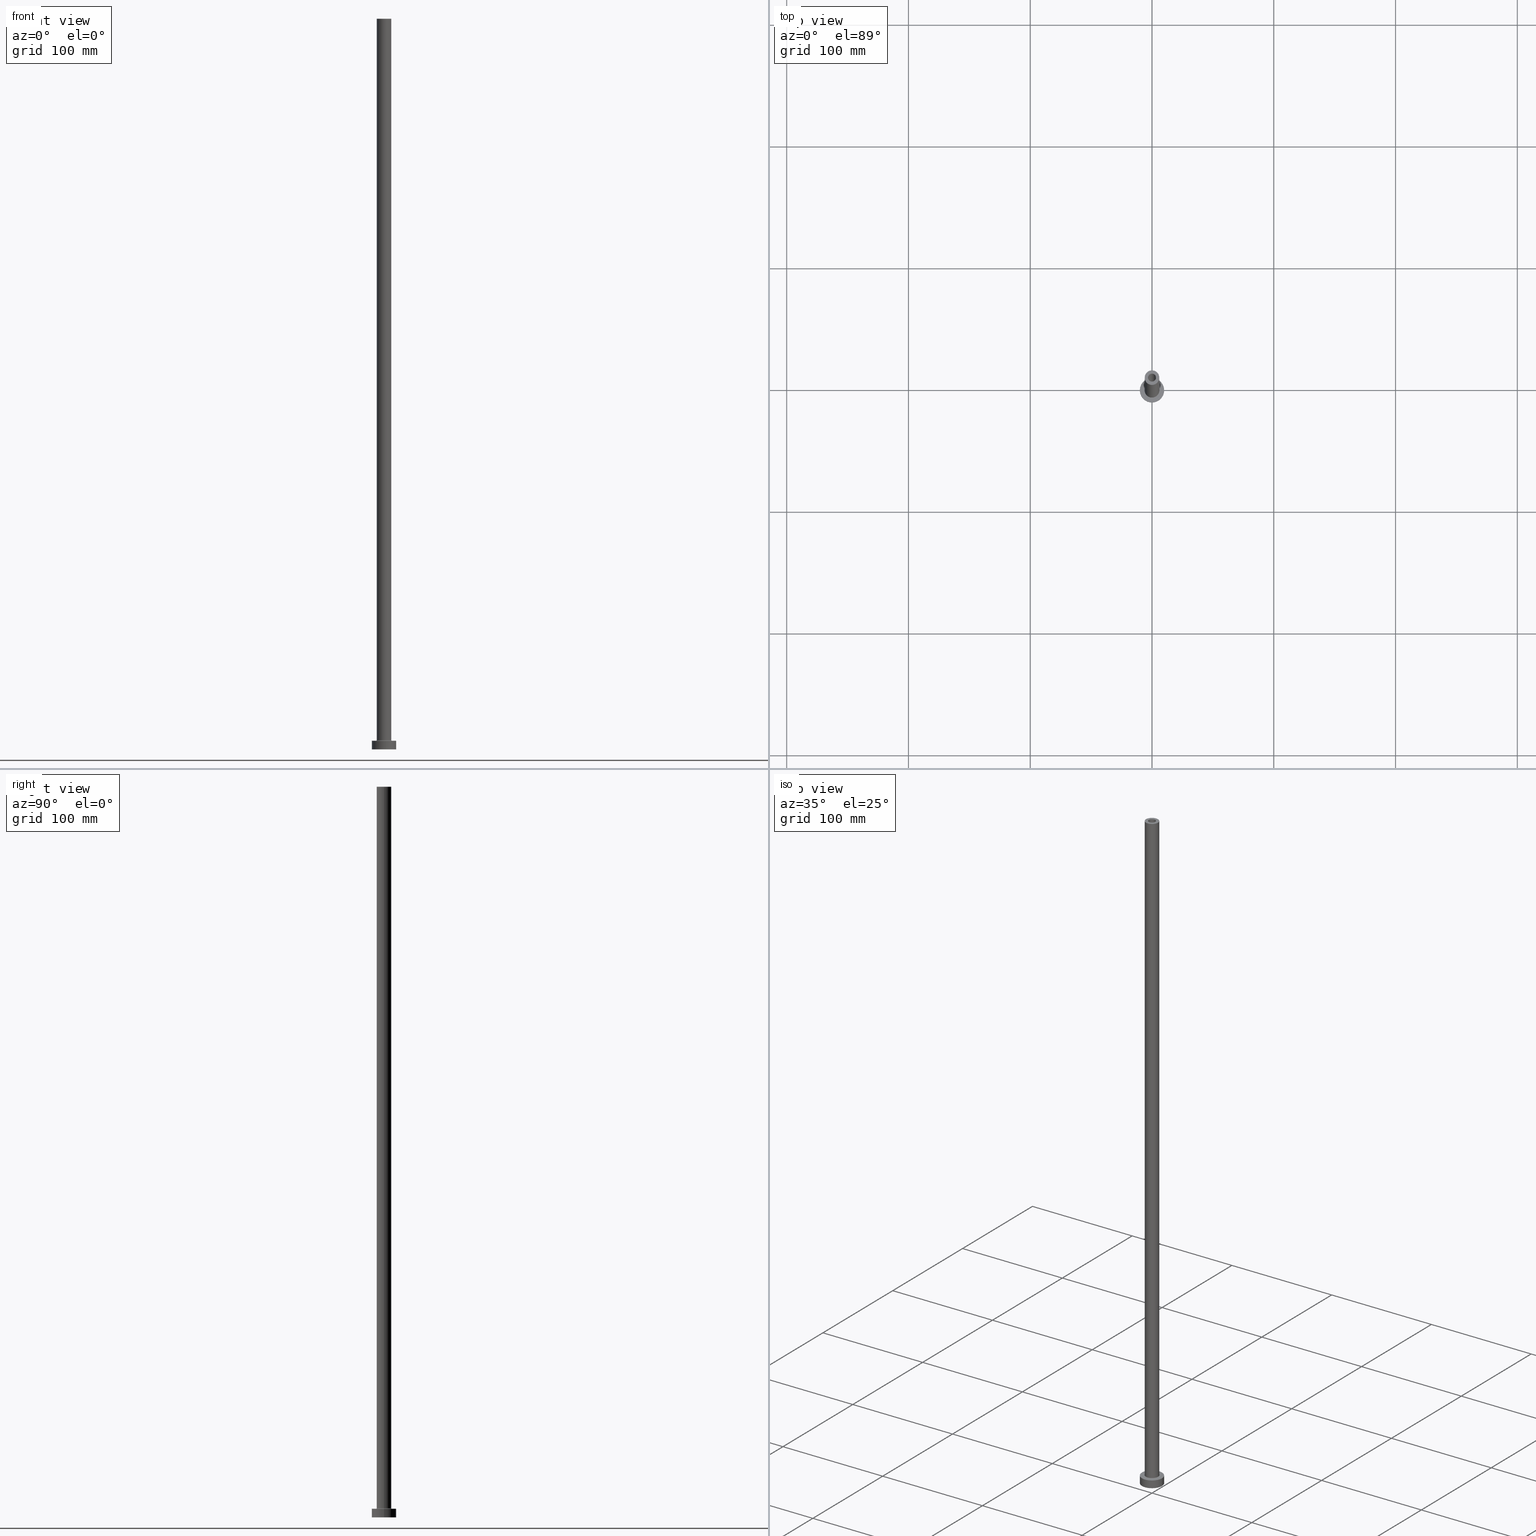
[diagram: canonical four-view strip — front | top / right | iso, engineering-drawing reading convention]
A machine part, canonical four-view strip (front | top / right | iso — engineering-drawing reading convention). The complete STEP part file that produces these views, byte-faithful:
ISO-10303-21;
HEADER;
FILE_DESCRIPTION (( 'STEP AP203' ),
    '1' );
FILE_NAME ('4e59.STEP',
    '2023-02-13T13:29:36',
    ( '' ),
    ( '' ),
    'SwSTEP 2.0',
    'SolidWorks 2019',
    '' );
FILE_SCHEMA (( 'CONFIG_CONTROL_DESIGN' ));
ENDSEC;

DATA;
#1 = DIRECTION ( 'NONE',  ( -0.000000000000000000, -0.000000000000000000, -1.000000000000000000 ) ) ;
#2 = CARTESIAN_POINT ( 'NONE',  ( 0.000000000000000000, 0.000000000000000000, 0.000000000000000000 ) ) ;
#3 = VERTEX_POINT ( 'NONE', #307 ) ;
#4 = COORDINATED_UNIVERSAL_TIME_OFFSET ( 1, 0, .AHEAD. ) ;
#5 = DIRECTION ( 'NONE',  ( -1.000000000000000000, 0.000000000000000000, 0.000000000000000000 ) ) ;
#6 = CARTESIAN_POINT ( 'NONE',  ( 3.399999999999999911, 4.163799117101000559E-16, 564.6166522241369421 ) ) ;
#7 = CARTESIAN_POINT ( 'NONE',  ( 0.000000000000000000, 0.000000000000000000, 7.000000000000000000 ) ) ;
#8 = APPROVAL_PERSON_ORGANIZATION ( #458, #315, #319 ) ;
#9 = LINE ( 'NONE', #259, #132 ) ;
#10 = FACE_OUTER_BOUND ( 'NONE', #16, .T. ) ;
#11 = ADVANCED_FACE ( 'NONE', ( #127, #196 ), #451, .T. ) ;
#12 = CARTESIAN_POINT ( 'NONE',  ( 0.000000000000000000, 0.000000000000000000, 600.0000000000000000 ) ) ;
#13 = CYLINDRICAL_SURFACE ( 'NONE', #202, 3.250000000000000444 ) ;
#14 = VERTEX_POINT ( 'NONE', #62 ) ;
#15 = FACE_OUTER_BOUND ( 'NONE', #286, .T. ) ;
#16 = EDGE_LOOP ( 'NONE', ( #242, #39, #455, #109 ) ) ;
#17 = LOCAL_TIME ( 14, 29, 36.00000000000000000, #250 ) ;
#18 = CARTESIAN_POINT ( 'NONE',  ( 0.000000000000000000, 0.000000000000000000, 564.6166522241369421 ) ) ;
#19 = APPROVAL_DATE_TIME ( #26, #104 ) ;
#20 = ORIENTED_EDGE ( 'NONE', *, *, #422, .F. ) ;
#21 = AXIS2_PLACEMENT_3D ( 'NONE', #63, #273, #411 ) ;
#22 = ORIENTED_EDGE ( 'NONE', *, *, #100, .F. ) ;
#23 = PERSON_AND_ORGANIZATION_ROLE ( 'creator' ) ;
#24 = EDGE_LOOP ( 'NONE', ( #356, #60 ) ) ;
#25 = CARTESIAN_POINT ( 'NONE',  ( -3.399999999999999911, 0.000000000000000000, 554.9999999999998863 ) ) ;
#26 = DATE_AND_TIME ( #90, #234 ) ;
#27 = EDGE_CURVE ( 'NONE', #3, #415, #381, .T. ) ;
#28 = DIRECTION ( 'NONE',  ( 1.000000000000000000, 0.000000000000000000, 0.000000000000000000 ) ) ;
#29 = ORIENTED_EDGE ( 'NONE', *, *, #312, .T. ) ;
#30 = CIRCLE ( 'NONE', #282, 10.00000000000000000 ) ;
#31 = LOCAL_TIME ( 14, 29, 36.00000000000000000, #416 ) ;
#32 = AXIS2_PLACEMENT_3D ( 'NONE', #344, #162, #454 ) ;
#33 = EDGE_CURVE ( 'NONE', #330, #160, #384, .T. ) ;
#34 = CC_DESIGN_PERSON_AND_ORGANIZATION_ASSIGNMENT ( #394, #252, ( #277 ) ) ;
#35 = CARTESIAN_POINT ( 'NONE',  ( 0.000000000000000000, 0.000000000000000000, 7.499999999999951150 ) ) ;
#36 = PERSON_AND_ORGANIZATION ( #383, #290 ) ;
#37 = CIRCLE ( 'NONE', #190, 3.250000000000000444 ) ;
#38 = FACE_OUTER_BOUND ( 'NONE', #271, .T. ) ;
#39 = ORIENTED_EDGE ( 'NONE', *, *, #280, .T. ) ;
#40 = CARTESIAN_POINT ( 'NONE',  ( 0.000000000000000000, 0.000000000000000000, 600.0000000000000000 ) ) ;
#41 = VERTEX_POINT ( 'NONE', #25 ) ;
#42 = CARTESIAN_POINT ( 'NONE',  ( 0.000000000000000000, 0.000000000000000000, 0.000000000000000000 ) ) ;
#43 = DIRECTION ( 'NONE',  ( -1.000000000000000000, 0.000000000000000000, 0.000000000000000000 ) ) ;
#44 = DIRECTION ( 'NONE',  ( 0.000000000000000000, 0.000000000000000000, -1.000000000000000000 ) ) ;
#45 = APPROVAL_PERSON_ORGANIZATION ( #36, #239, #317 ) ;
#46 = CARTESIAN_POINT ( 'NONE',  ( 6.500000000000000888, 0.000000000000000000, 6.999999999999975131 ) ) ;
#47 = ADVANCED_FACE ( 'NONE', ( #406 ), #198, .F. ) ;
#48 = DIRECTION ( 'NONE',  ( -0.000000000000000000, -0.000000000000000000, -1.000000000000000000 ) ) ;
#49 = CARTESIAN_POINT ( 'NONE',  ( 0.000000000000000000, 0.000000000000000000, 0.000000000000000000 ) ) ;
#50 = EDGE_LOOP ( 'NONE', ( #304, #275, #305, #447 ) ) ;
#51 = LINE ( 'NONE', #83, #452 ) ;
#52 = EDGE_CURVE ( 'NONE', #92, #338, #114, .T. ) ;
#53 = FACE_OUTER_BOUND ( 'NONE', #233, .T. ) ;
#54 = PERSON_AND_ORGANIZATION_ROLE ( 'design_supplier' ) ;
#55 = EDGE_LOOP ( 'NONE', ( #184, #64 ) ) ;
#56 = ORIENTED_EDGE ( 'NONE', *, *, #52, .F. ) ;
#57 = AXIS2_PLACEMENT_3D ( 'NONE', #428, #1, #283 ) ;
#58 = DIRECTION ( 'NONE',  ( 0.000000000000000000, 0.000000000000000000, -1.000000000000000000 ) ) ;
#59 = PERSON_AND_ORGANIZATION ( #383, #290 ) ;
#60 = ORIENTED_EDGE ( 'NONE', *, *, #27, .T. ) ;
#61 = ORIENTED_EDGE ( 'NONE', *, *, #200, .F. ) ;
#62 = CARTESIAN_POINT ( 'NONE',  ( -6.000000000000000888, 0.000000000000000000, 600.0000000000000000 ) ) ;
#63 = CARTESIAN_POINT ( 'NONE',  ( 0.000000000000000000, 0.000000000000000000, 7.000000000000000000 ) ) ;
#64 = ORIENTED_EDGE ( 'NONE', *, *, #453, .F. ) ;
#65 = DATE_TIME_ROLE ( 'classification_date' ) ;
#66 = ORIENTED_EDGE ( 'NONE', *, *, #380, .F. ) ;
#67 = AXIS2_PLACEMENT_3D ( 'NONE', #445, #400, #365 ) ;
#68 = EDGE_CURVE ( 'NONE', #160, #330, #423, .T. ) ;
#69 = DIRECTION ( 'NONE',  ( 1.000000000000000000, 0.000000000000000000, 0.000000000000000000 ) ) ;
#70 = CARTESIAN_POINT ( 'NONE',  ( 0.000000000000000000, 0.000000000000000000, 564.6166522241369421 ) ) ;
#71 = DIRECTION ( 'NONE',  ( -0.000000000000000000, -0.000000000000000000, -1.000000000000000000 ) ) ;
#72 = ORIENTED_EDGE ( 'NONE', *, *, #439, .T. ) ;
#73 = DIRECTION ( 'NONE',  ( 0.000000000000000000, 0.000000000000000000, 1.000000000000000000 ) ) ;
#74 = AXIS2_PLACEMENT_3D ( 'NONE', #397, #48, #331 ) ;
#75 = CARTESIAN_POINT ( 'NONE',  ( 10.00000000000000000, 1.224646799147353256E-15, 7.000000000000000000 ) ) ;
#76 = AXIS2_PLACEMENT_3D ( 'NONE', #148, #260, #393 ) ;
#77 = LINE ( 'NONE', #6, #371 ) ;
#78 = CYLINDRICAL_SURFACE ( 'NONE', #203, 6.000000000000000888 ) ;
#79 = CARTESIAN_POINT ( 'NONE',  ( -3.250000000000000444, 0.000000000000000000, 600.0000000000000000 ) ) ;
#80 = DIRECTION ( 'NONE',  ( -0.000000000000000000, -0.000000000000000000, -1.000000000000000000 ) ) ;
#81 = DIRECTION ( 'NONE',  ( -0.000000000000000000, -0.000000000000000000, -1.000000000000000000 ) ) ;
#82 = AXIS2_PLACEMENT_3D ( 'NONE', #434, #80, #255 ) ;
#83 = CARTESIAN_POINT ( 'NONE',  ( -6.000000000000000888, 0.000000000000000000, 600.0000000000000000 ) ) ;
#84 = CC_DESIGN_PERSON_AND_ORGANIZATION_ASSIGNMENT ( #59, #188, ( #222 ) ) ;
#85 = EDGE_CURVE ( 'NONE', #370, #338, #9, .T. ) ;
#86 = FACE_OUTER_BOUND ( 'NONE', #302, .T. ) ;
#87 = CARTESIAN_POINT ( 'NONE',  ( 0.000000000000000000, 0.000000000000000000, 600.0000000000000000 ) ) ;
#88 = VERTEX_POINT ( 'NONE', #46 ) ;
#89 = CYLINDRICAL_SURFACE ( 'NONE', #347, 3.399999999999999911 ) ;
#90 = CALENDAR_DATE ( 2023, 13, 2 ) ;
#91 = ORIENTED_EDGE ( 'NONE', *, *, #261, .T. ) ;
#92 = VERTEX_POINT ( 'NONE', #437 ) ;
#93 = CARTESIAN_POINT ( 'NONE',  ( 0.000000000000000000, 0.000000000000000000, 7.499999999999951150 ) ) ;
#94 = AXIS2_PLACEMENT_3D ( 'NONE', #385, #256, #358 ) ;
#95 = PERSON_AND_ORGANIZATION ( #383, #290 ) ;
#96 = ORIENTED_EDGE ( 'NONE', *, *, #380, .T. ) ;
#97 = CARTESIAN_POINT ( 'NONE',  ( 0.000000000000000000, 0.000000000000000000, 600.0000000000000000 ) ) ;
#98 = VERTEX_POINT ( 'NONE', #360 ) ;
#99 = ORIENTED_EDGE ( 'NONE', *, *, #417, .T. ) ;
#100 = EDGE_CURVE ( 'NONE', #41, #98, #177, .T. ) ;
#101 = DATE_AND_TIME ( #446, #31 ) ;
#102 = AXIS2_PLACEMENT_3D ( 'NONE', #327, #155, #120 ) ;
#103 = AXIS2_PLACEMENT_3D ( 'NONE', #359, #81, #221 ) ;
#104 = APPROVAL ( #369, 'NEUR�EN�' ) ;
#105 = AXIS2_PLACEMENT_3D ( 'NONE', #425, #389, #247 ) ;
#106 = FACE_OUTER_BOUND ( 'NONE', #195, .T. ) ;
#107 = PERSON_AND_ORGANIZATION_ROLE ( 'creator' ) ;
#108 = DIRECTION ( 'NONE',  ( 1.000000000000000000, 0.000000000000000000, 0.000000000000000000 ) ) ;
#109 = ORIENTED_EDGE ( 'NONE', *, *, #204, .F. ) ;
#110 = ADVANCED_FACE ( 'NONE', ( #436, #118 ), #257, .T. ) ;
#111 = DATE_AND_TIME ( #142, #272 ) ;
#112 = DIRECTION ( 'NONE',  ( 1.000000000000000000, 0.000000000000000000, 0.000000000000000000 ) ) ;
#113 = CARTESIAN_POINT ( 'NONE',  ( 10.00000000000000000, 1.224646799147353256E-15, 0.000000000000000000 ) ) ;
#114 = CIRCLE ( 'NONE', #32, 3.250000000000000444 ) ;
#115 = MECHANICAL_CONTEXT ( 'NONE', #413, 'mechanical' ) ;
#116 = LINE ( 'NONE', #79, #339 ) ;
#117 = EDGE_CURVE ( 'NONE', #372, #92, #116, .T. ) ;
#118 = FACE_OUTER_BOUND ( 'NONE', #24, .T. ) ;
#119 = AXIS2_PLACEMENT_3D ( 'NONE', #2, #429, #108 ) ;
#120 = DIRECTION ( 'NONE',  ( 1.000000000000000000, 0.000000000000000000, 0.000000000000000000 ) ) ;
#121 = DIRECTION ( 'NONE',  ( 0.000000000000000000, 0.000000000000000000, -1.000000000000000000 ) ) ;
#122 = CARTESIAN_POINT ( 'NONE',  ( 6.000000000000000888, 7.347880794884120722E-16, 600.0000000000000000 ) ) ;
#123 = ORIENTED_EDGE ( 'NONE', *, *, #427, .T. ) ;
#124 = CARTESIAN_POINT ( 'NONE',  ( 0.000000000000000000, 0.000000000000000000, 7.000000000000000000 ) ) ;
#125 = VERTEX_POINT ( 'NONE', #219 ) ;
#126 = ORIENTED_EDGE ( 'NONE', *, *, #350, .T. ) ;
#127 = FACE_BOUND ( 'NONE', #237, .T. ) ;
#128 = ORIENTED_EDGE ( 'NONE', *, *, #453, .T. ) ;
#129 = DIRECTION ( 'NONE',  ( 0.000000000000000000, 0.000000000000000000, 1.000000000000000000 ) ) ;
#130 = AXIS2_PLACEMENT_3D ( 'NONE', #443, #438, #262 ) ;
#131 = EDGE_LOOP ( 'NONE', ( #91, #99 ) ) ;
#132 = VECTOR ( 'NONE', #44, 1000.000000000000000 ) ;
#133 = EDGE_CURVE ( 'NONE', #88, #134, #424, .T. ) ;
#134 = VERTEX_POINT ( 'NONE', #325 ) ;
#135 = ADVANCED_FACE ( 'NONE', ( #10 ), #150, .T. ) ;
#136 = TOROIDAL_SURFACE ( 'NONE', #102, 6.500000000000000888, 0.5000000000000000000 ) ;
#137 = CARTESIAN_POINT ( 'NONE',  ( -10.00000000000000000, 0.000000000000000000, 7.000000000000000000 ) ) ;
#138 = AXIS2_PLACEMENT_3D ( 'NONE', #12, #363, #151 ) ;
#139 = PERSON_AND_ORGANIZATION ( #383, #290 ) ;
#140 = LINE ( 'NONE', #320, #382 ) ;
#141 = EDGE_CURVE ( 'NONE', #375, #412, #419, .T. ) ;
#142 = CALENDAR_DATE ( 2023, 13, 2 ) ;
#143 = CARTESIAN_POINT ( 'NONE',  ( 3.250000000000000444, 3.980102097228898231E-16, 600.0000000000000000 ) ) ;
#144 =( NAMED_UNIT ( * ) SI_UNIT ( $, .STERADIAN. ) SOLID_ANGLE_UNIT ( ) );
#145 = DIRECTION ( 'NONE',  ( 0.000000000000000000, 0.000000000000000000, 1.000000000000000000 ) ) ;
#146 = AXIS2_PLACEMENT_3D ( 'NONE', #42, #321, #258 ) ;
#147 = CARTESIAN_POINT ( 'NONE',  ( 0.000000000000000000, 0.000000000000000000, 0.000000000000000000 ) ) ;
#148 = CARTESIAN_POINT ( 'NONE',  ( 0.000000000000000000, 0.000000000000000000, 7.000000000000000000 ) ) ;
#149 = PRODUCT_RELATED_PRODUCT_CATEGORY ( 'detail', '', ( #277 ) ) ;
#150 = CYLINDRICAL_SURFACE ( 'NONE', #224, 6.000000000000000888 ) ;
#151 = DIRECTION ( 'NONE',  ( 1.000000000000000000, 0.000000000000000000, 0.000000000000000000 ) ) ;
#152 = DIRECTION ( 'NONE',  ( 0.000000000000000000, 0.000000000000000000, -1.000000000000000000 ) ) ;
#153 = ORIENTED_EDGE ( 'NONE', *, *, #52, .T. ) ;
#154 = VECTOR ( 'NONE', #205, 1000.000000000000000 ) ;
#155 = DIRECTION ( 'NONE',  ( 0.000000000000000000, 0.000000000000000000, 1.000000000000000000 ) ) ;
#156 = ORIENTED_EDGE ( 'NONE', *, *, #427, .F. ) ;
#157 = CARTESIAN_POINT ( 'NONE',  ( 6.500000000000000888, 0.000000000000000000, 7.499999999999951150 ) ) ;
#158 = ORIENTED_EDGE ( 'NONE', *, *, #280, .F. ) ;
#159 = EDGE_LOOP ( 'NONE', ( #191, #229, #96, #311 ) ) ;
#160 = VERTEX_POINT ( 'NONE', #329 ) ;
#161 = DIRECTION ( 'NONE',  ( 1.000000000000000000, 0.000000000000000000, 0.000000000000000000 ) ) ;
#162 = DIRECTION ( 'NONE',  ( 0.000000000000000000, 0.000000000000000000, 1.000000000000000000 ) ) ;
#163 = LOCAL_TIME ( 14, 29, 36.00000000000000000, #241 ) ;
#164 = ORIENTED_EDGE ( 'NONE', *, *, #209, .F. ) ;
#165 = ADVANCED_FACE ( 'NONE', ( #297 ), #13, .F. ) ;
#166 = CIRCLE ( 'NONE', #398, 0.5000000000000004441 ) ;
#167 = CC_DESIGN_SECURITY_CLASSIFICATION ( #222, ( #179 ) ) ;
#168 = EDGE_CURVE ( 'NONE', #160, #88, #349, .T. ) ;
#169 = LINE ( 'NONE', #137, #201 ) ;
#170 = APPROVAL_STATUS ( 'not_yet_approved' ) ;
#171 = CYLINDRICAL_SURFACE ( 'NONE', #244, 10.00000000000000000 ) ;
#172 = AXIS2_PLACEMENT_3D ( 'NONE', #93, #310, #28 ) ;
#173 = ADVANCED_FACE ( 'NONE', ( #368, #333 ), #441, .F. ) ;
#174 = APPROVAL_STATUS ( 'not_yet_approved' ) ;
#175 = CARTESIAN_POINT ( 'NONE',  ( 0.000000000000000000, 0.000000000000000000, 600.0000000000000000 ) ) ;
#176 =( NAMED_UNIT ( * ) PLANE_ANGLE_UNIT ( ) SI_UNIT ( $, .RADIAN. ) );
#177 = LINE ( 'NONE', #180, #278 ) ;
#178 = CC_DESIGN_DATE_AND_TIME_ASSIGNMENT ( #207, #354, ( #461 ) ) ;
#179 = PRODUCT_DEFINITION_FORMATION_WITH_SPECIFIED_SOURCE ( 'LIBOVOLN�', '', #277, .NOT_KNOWN. ) ;
#180 = CARTESIAN_POINT ( 'NONE',  ( -3.399999999999999911, 0.000000000000000000, 564.6166522241369421 ) ) ;
#181 = MANIFOLD_SOLID_BREP ( 'Odebrat vysunut�m4', #314 ) ;
#182 = CARTESIAN_POINT ( 'NONE',  ( 0.000000000000000000, 0.000000000000000000, 600.0000000000000000 ) ) ;
#183 = DIRECTION ( 'NONE',  ( -1.000000000000000000, 0.000000000000000000, 0.000000000000000000 ) ) ;
#184 = ORIENTED_EDGE ( 'NONE', *, *, #350, .F. ) ;
#185 = ADVANCED_FACE ( 'NONE', ( #53 ), #89, .F. ) ;
#186 = CYLINDRICAL_SURFACE ( 'NONE', #74, 10.00000000000000000 ) ;
#187 = DIRECTION ( 'NONE',  ( 1.000000000000000000, 0.000000000000000000, 0.000000000000000000 ) ) ;
#188 = PERSON_AND_ORGANIZATION_ROLE ( 'classification_officer' ) ;
#189 = ORIENTED_EDGE ( 'NONE', *, *, #209, .T. ) ;
#190 = AXIS2_PLACEMENT_3D ( 'NONE', #355, #435, #388 ) ;
#191 = ORIENTED_EDGE ( 'NONE', *, *, #27, .F. ) ;
#192 = DATE_AND_TIME ( #407, #163 ) ;
#193 = ORIENTED_EDGE ( 'NONE', *, *, #386, .T. ) ;
#194 = AXIS2_PLACEMENT_3D ( 'NONE', #373, #129, #342 ) ;
#195 = EDGE_LOOP ( 'NONE', ( #366, #20 ) ) ;
#196 = FACE_OUTER_BOUND ( 'NONE', #131, .T. ) ;
#197 = PERSON_AND_ORGANIZATION ( #383, #290 ) ;
#198 = CYLINDRICAL_SURFACE ( 'NONE', #215, 3.250000000000000444 ) ;
#199 = ORIENTED_EDGE ( 'NONE', *, *, #346, .T. ) ;
#200 = EDGE_CURVE ( 'NONE', #415, #3, #30, .T. ) ;
#201 = VECTOR ( 'NONE', #318, 1000.000000000000000 ) ;
#202 = AXIS2_PLACEMENT_3D ( 'NONE', #87, #152, #183 ) ;
#203 = AXIS2_PLACEMENT_3D ( 'NONE', #175, #457, #43 ) ;
#204 = EDGE_CURVE ( 'NONE', #14, #330, #51, .T. ) ;
#205 = DIRECTION ( 'NONE',  ( -0.000000000000000000, -0.000000000000000000, -1.000000000000000000 ) ) ;
#206 = DESIGN_CONTEXT ( 'detailed design', #432, 'design' ) ;
#207 = DATE_AND_TIME ( #387, #17 ) ;
#208 = DIRECTION ( 'NONE',  ( 0.000000000000000000, 0.000000000000000000, 1.000000000000000000 ) ) ;
#209 = EDGE_CURVE ( 'NONE', #372, #370, #379, .T. ) ;
#210 = EDGE_LOOP ( 'NONE', ( #306, #72 ) ) ;
#211 = CIRCLE ( 'NONE', #351, 3.399999999999999911 ) ;
#212 = APPROVAL_PERSON_ORGANIZATION ( #243, #104, #343 ) ;
#213 = DIRECTION ( 'NONE',  ( 0.000000000000000000, 0.000000000000000000, -1.000000000000000000 ) ) ;
#214 = CARTESIAN_POINT ( 'NONE',  ( -10.00000000000000000, 0.000000000000000000, 7.000000000000000000 ) ) ;
#215 = AXIS2_PLACEMENT_3D ( 'NONE', #97, #238, #374 ) ;
#216 = ORIENTED_EDGE ( 'NONE', *, *, #117, .F. ) ;
#217 = DIRECTION ( 'NONE',  ( 1.000000000000000000, 0.000000000000000000, 0.000000000000000000 ) ) ;
#218 = PLANE ( 'NONE',  #105 ) ;
#219 = CARTESIAN_POINT ( 'NONE',  ( 3.399999999999999911, 4.163799117101000559E-16, 554.9999999999998863 ) ) ;
#220 = APPLICATION_PROTOCOL_DEFINITION ( 'international standard', 'config_control_design', 1994, #432 ) ;
#221 = DIRECTION ( 'NONE',  ( 1.000000000000000000, 0.000000000000000000, 0.000000000000000000 ) ) ;
#222 = SECURITY_CLASSIFICATION ( '', '', #376 ) ;
#223 = DIRECTION ( 'NONE',  ( -0.000000000000000000, -0.000000000000000000, -1.000000000000000000 ) ) ;
#224 = AXIS2_PLACEMENT_3D ( 'NONE', #323, #294, #263 ) ;
#225 = ADVANCED_FACE ( 'NONE', ( #86 ), #186, .T. ) ;
#226 = DIRECTION ( 'NONE',  ( -1.000000000000000000, 1.224646799147351482E-16, 0.000000000000000000 ) ) ;
#227 = DIRECTION ( 'NONE',  ( 0.000000000000000000, 0.000000000000000000, 1.000000000000000000 ) ) ;
#228 = EDGE_LOOP ( 'NONE', ( #153, #450 ) ) ;
#229 = ORIENTED_EDGE ( 'NONE', *, *, #414, .T. ) ;
#230 = DIRECTION ( 'NONE',  ( 1.000000000000000000, 0.000000000000000000, 0.000000000000000000 ) ) ;
#231 = ORIENTED_EDGE ( 'NONE', *, *, #33, .F. ) ;
#232 = CIRCLE ( 'NONE', #130, 3.250000000000000444 ) ;
#233 = EDGE_LOOP ( 'NONE', ( #199, #123, #128, #22 ) ) ;
#234 = LOCAL_TIME ( 14, 29, 36.00000000000000000, #236 ) ;
#235 = DIRECTION ( 'NONE',  ( 0.000000000000000000, 0.000000000000000000, 1.000000000000000000 ) ) ;
#236 = COORDINATED_UNIVERSAL_TIME_OFFSET ( 1, 0, .AHEAD. ) ;
#237 = EDGE_LOOP ( 'NONE', ( #164, #335 ) ) ;
#238 = DIRECTION ( 'NONE',  ( 0.000000000000000000, 0.000000000000000000, -1.000000000000000000 ) ) ;
#239 = APPROVAL ( #170, 'NEUR�EN�' ) ;
#240 = ORIENTED_EDGE ( 'NONE', *, *, #100, .T. ) ;
#241 = COORDINATED_UNIVERSAL_TIME_OFFSET ( 1, 0, .AHEAD. ) ;
#242 = ORIENTED_EDGE ( 'NONE', *, *, #417, .F. ) ;
#243 = PERSON_AND_ORGANIZATION ( #383, #290 ) ;
#244 = AXIS2_PLACEMENT_3D ( 'NONE', #7, #460, #316 ) ;
#245 = PRODUCT_DEFINITION_SHAPE ( 'NONE', 'NONE',  #461 ) ;
#246 = APPROVAL_DATE_TIME ( #111, #315 ) ;
#247 = DIRECTION ( 'NONE',  ( 1.000000000000000000, 0.000000000000000000, -0.000000000000000000 ) ) ;
#248 = CC_DESIGN_PERSON_AND_ORGANIZATION_ASSIGNMENT ( #95, #23, ( #179 ) ) ;
#249 = ADVANCED_FACE ( 'NONE', ( #15 ), #136, .F. ) ;
#250 = COORDINATED_UNIVERSAL_TIME_OFFSET ( 1, 0, .AHEAD. ) ;
#251 = CARTESIAN_POINT ( 'NONE',  ( -3.250000000000000444, 0.000000000000000000, 600.0000000000000000 ) ) ;
#252 = PERSON_AND_ORGANIZATION_ROLE ( 'design_owner' ) ;
#253 = DIRECTION ( 'NONE',  ( 1.000000000000000000, 0.000000000000000000, 0.000000000000000000 ) ) ;
#254 = CIRCLE ( 'NONE', #94, 3.399999999999999911 ) ;
#255 = DIRECTION ( 'NONE',  ( 1.000000000000000000, 0.000000000000000000, 0.000000000000000000 ) ) ;
#256 = DIRECTION ( 'NONE',  ( 0.000000000000000000, 0.000000000000000000, 1.000000000000000000 ) ) ;
#257 = PLANE ( 'NONE',  #76 ) ;
#258 = DIRECTION ( 'NONE',  ( 1.000000000000000000, 0.000000000000000000, 0.000000000000000000 ) ) ;
#259 = CARTESIAN_POINT ( 'NONE',  ( 3.250000000000000444, 3.980102097228898231E-16, 600.0000000000000000 ) ) ;
#260 = DIRECTION ( 'NONE',  ( 0.000000000000000000, 0.000000000000000000, 1.000000000000000000 ) ) ;
#261 = EDGE_CURVE ( 'NONE', #14, #268, #409, .T. ) ;
#262 = DIRECTION ( 'NONE',  ( 1.000000000000000000, 0.000000000000000000, 0.000000000000000000 ) ) ;
#263 = DIRECTION ( 'NONE',  ( -1.000000000000000000, 0.000000000000000000, 0.000000000000000000 ) ) ;
#264 = EDGE_CURVE ( 'NONE', #338, #92, #232, .T. ) ;
#265 = CARTESIAN_POINT ( 'NONE',  ( -6.500000000000000888, 7.960204194457796463E-16, 7.499999999999951150 ) ) ;
#266 = EDGE_LOOP ( 'NONE', ( #377, #66 ) ) ;
#267 = DIRECTION ( 'NONE',  ( 0.000000000000000000, 0.000000000000000000, 1.000000000000000000 ) ) ;
#268 = VERTEX_POINT ( 'NONE', #122 ) ;
#269 = VERTEX_POINT ( 'NONE', #399 ) ;
#270 = CARTESIAN_POINT ( 'NONE',  ( 0.000000000000000000, 0.000000000000000000, 7.499999999999951150 ) ) ;
#271 = EDGE_LOOP ( 'NONE', ( #156, #402, #240, #126 ) ) ;
#272 = LOCAL_TIME ( 14, 29, 36.00000000000000000, #4 ) ;
#273 = DIRECTION ( 'NONE',  ( 0.000000000000000000, 0.000000000000000000, 1.000000000000000000 ) ) ;
#274 = ORIENTED_EDGE ( 'NONE', *, *, #264, .F. ) ;
#275 = ORIENTED_EDGE ( 'NONE', *, *, #68, .F. ) ;
#276 = EDGE_CURVE ( 'NONE', #330, #134, #166, .T. ) ;
#277 = PRODUCT ( '4e59', '4e59', '', ( #115 ) ) ;
#278 = VECTOR ( 'NONE', #292, 1000.000000000000000 ) ;
#279 = FACE_BOUND ( 'NONE', #228, .T. ) ;
#280 = EDGE_CURVE ( 'NONE', #268, #160, #140, .T. ) ;
#281 = CIRCLE ( 'NONE', #119, 3.399999999999999911 ) ;
#282 = AXIS2_PLACEMENT_3D ( 'NONE', #124, #267, #230 ) ;
#283 = DIRECTION ( 'NONE',  ( 1.000000000000000000, 0.000000000000000000, 0.000000000000000000 ) ) ;
#284 = CARTESIAN_POINT ( 'NONE',  ( -6.000000000000000888, 0.000000000000000000, 7.499999999999951150 ) ) ;
#285 = AXIS2_PLACEMENT_3D ( 'NONE', #49, #227, #187 ) ;
#286 = EDGE_LOOP ( 'NONE', ( #231, #299, #341, #448 ) ) ;
#287 =( LENGTH_UNIT ( ) NAMED_UNIT ( * ) SI_UNIT ( .MILLI., .METRE. ) );
#288 = CYLINDRICAL_SURFACE ( 'NONE', #433, 3.399999999999999911 ) ;
#289 = FACE_OUTER_BOUND ( 'NONE', #444, .T. ) ;
#290 = ORGANIZATION ( 'NEUR�EN�', 'NEUR�EN�', '' ) ;
#291 = DIRECTION ( 'NONE',  ( 0.000000000000000000, 0.000000000000000000, 1.000000000000000000 ) ) ;
#292 = DIRECTION ( 'NONE',  ( 0.000000000000000000, 0.000000000000000000, -1.000000000000000000 ) ) ;
#293 = AXIS2_PLACEMENT_3D ( 'NONE', #270, #235, #161 ) ;
#294 = DIRECTION ( 'NONE',  ( -0.000000000000000000, -0.000000000000000000, -1.000000000000000000 ) ) ;
#295 = CC_DESIGN_DATE_AND_TIME_ASSIGNMENT ( #101, #65, ( #222 ) ) ;
#296 = DIRECTION ( 'NONE',  ( 0.000000000000000000, 0.000000000000000000, 1.000000000000000000 ) ) ;
#297 = FACE_OUTER_BOUND ( 'NONE', #442, .T. ) ;
#298 = ADVANCED_FACE ( 'NONE', ( #289 ), #78, .T. ) ;
#299 = ORIENTED_EDGE ( 'NONE', *, *, #276, .T. ) ;
#300 =( GEOMETRIC_REPRESENTATION_CONTEXT ( 3 ) GLOBAL_UNCERTAINTY_ASSIGNED_CONTEXT ( ( #410 ) ) GLOBAL_UNIT_ASSIGNED_CONTEXT ( ( #287, #176, #144 ) ) REPRESENTATION_CONTEXT ( 'NONE', 'WORKASPACE' ) );
#301 = AXIS2_PLACEMENT_3D ( 'NONE', #157, #403, #121 ) ;
#302 = EDGE_LOOP ( 'NONE', ( #340, #61, #29, #405 ) ) ;
#303 = DIRECTION ( 'NONE',  ( -1.000000000000000000, 0.000000000000000000, 0.000000000000000000 ) ) ;
#304 = ORIENTED_EDGE ( 'NONE', *, *, #276, .F. ) ;
#305 = ORIENTED_EDGE ( 'NONE', *, *, #168, .T. ) ;
#306 = ORIENTED_EDGE ( 'NONE', *, *, #133, .T. ) ;
#307 = CARTESIAN_POINT ( 'NONE',  ( 10.00000000000000000, 1.224646799147353256E-15, 7.000000000000000000 ) ) ;
#308 = ADVANCED_BREP_SHAPE_REPRESENTATION ( '4e59', ( #181, #146 ), #300 ) ;
#309 = AXIS2_PLACEMENT_3D ( 'NONE', #182, #296, #364 ) ;
#310 = DIRECTION ( 'NONE',  ( 0.000000000000000000, 0.000000000000000000, 1.000000000000000000 ) ) ;
#311 = ORIENTED_EDGE ( 'NONE', *, *, #312, .F. ) ;
#312 = EDGE_CURVE ( 'NONE', #415, #375, #169, .T. ) ;
#313 = CIRCLE ( 'NONE', #82, 3.399999999999999911 ) ;
#314 = CLOSED_SHELL ( 'NONE', ( #47, #185, #249, #135, #361, #225, #110, #173, #298, #11, #353, #395, #328, #165 ) ) ;
#315 = APPROVAL ( #174, 'NEUR�EN�' ) ;
#316 = DIRECTION ( 'NONE',  ( -1.000000000000000000, 0.000000000000000000, 0.000000000000000000 ) ) ;
#317 = APPROVAL_ROLE ( '' ) ;
#318 = DIRECTION ( 'NONE',  ( -0.000000000000000000, -0.000000000000000000, -1.000000000000000000 ) ) ;
#319 = APPROVAL_ROLE ( '' ) ;
#320 = CARTESIAN_POINT ( 'NONE',  ( 6.000000000000000888, 7.347880794884120722E-16, 600.0000000000000000 ) ) ;
#321 = DIRECTION ( 'NONE',  ( 0.000000000000000000, 0.000000000000000000, 1.000000000000000000 ) ) ;
#322 = FACE_OUTER_BOUND ( 'NONE', #159, .T. ) ;
#323 = CARTESIAN_POINT ( 'NONE',  ( 0.000000000000000000, 0.000000000000000000, 600.0000000000000000 ) ) ;
#324 = CC_DESIGN_APPROVAL ( #315, ( #461 ) ) ;
#325 = CARTESIAN_POINT ( 'NONE',  ( -6.500000000000000888, 7.960204194457796463E-16, 6.999999999999975131 ) ) ;
#326 = CC_DESIGN_PERSON_AND_ORGANIZATION_ASSIGNMENT ( #139, #107, ( #461 ) ) ;
#327 = CARTESIAN_POINT ( 'NONE',  ( 0.000000000000000000, 0.000000000000000000, 7.499999999999951150 ) ) ;
#328 = ADVANCED_FACE ( 'NONE', ( #279, #106 ), #218, .F. ) ;
#329 = CARTESIAN_POINT ( 'NONE',  ( 6.000000000000000888, 7.347880794884120722E-16, 7.499999999999951150 ) ) ;
#330 = VERTEX_POINT ( 'NONE', #284 ) ;
#331 = DIRECTION ( 'NONE',  ( -1.000000000000000000, 0.000000000000000000, 0.000000000000000000 ) ) ;
#332 = ORIENTED_EDGE ( 'NONE', *, *, #204, .T. ) ;
#333 = FACE_OUTER_BOUND ( 'NONE', #266, .T. ) ;
#334 = APPROVAL_DATE_TIME ( #192, #239 ) ;
#335 = ORIENTED_EDGE ( 'NONE', *, *, #386, .F. ) ;
#336 = TOROIDAL_SURFACE ( 'NONE', #390, 6.500000000000000888, 0.5000000000000000000 ) ;
#337 = CC_DESIGN_APPROVAL ( #104, ( #222 ) ) ;
#338 = VERTEX_POINT ( 'NONE', #392 ) ;
#339 = VECTOR ( 'NONE', #396, 1000.000000000000000 ) ;
#340 = ORIENTED_EDGE ( 'NONE', *, *, #414, .F. ) ;
#341 = ORIENTED_EDGE ( 'NONE', *, *, #133, .F. ) ;
#342 = DIRECTION ( 'NONE',  ( 1.000000000000000000, 0.000000000000000000, -0.000000000000000000 ) ) ;
#343 = APPROVAL_ROLE ( '' ) ;
#344 = CARTESIAN_POINT ( 'NONE',  ( 0.000000000000000000, 0.000000000000000000, 554.9999999999998863 ) ) ;
#345 = ORIENTED_EDGE ( 'NONE', *, *, #117, .T. ) ;
#346 = EDGE_CURVE ( 'NONE', #41, #125, #254, .T. ) ;
#347 = AXIS2_PLACEMENT_3D ( 'NONE', #18, #58, #303 ) ;
#348 = SHAPE_DEFINITION_REPRESENTATION ( #245, #308 ) ;
#349 = CIRCLE ( 'NONE', #301, 0.5000000000000004441 ) ;
#350 = EDGE_CURVE ( 'NONE', #98, #269, #281, .T. ) ;
#351 = AXIS2_PLACEMENT_3D ( 'NONE', #430, #73, #217 ) ;
#352 = LINE ( 'NONE', #75, #154 ) ;
#353 = ADVANCED_FACE ( 'NONE', ( #431 ), #336, .F. ) ;
#354 = DATE_TIME_ROLE ( 'creation_date' ) ;
#355 = CARTESIAN_POINT ( 'NONE',  ( 0.000000000000000000, 0.000000000000000000, 600.0000000000000000 ) ) ;
#356 = ORIENTED_EDGE ( 'NONE', *, *, #200, .T. ) ;
#357 = CARTESIAN_POINT ( 'NONE',  ( -10.00000000000000000, 0.000000000000000000, 0.000000000000000000 ) ) ;
#358 = DIRECTION ( 'NONE',  ( 1.000000000000000000, 0.000000000000000000, 0.000000000000000000 ) ) ;
#359 = CARTESIAN_POINT ( 'NONE',  ( 0.000000000000000000, 0.000000000000000000, 7.000000000000000000 ) ) ;
#360 = CARTESIAN_POINT ( 'NONE',  ( -3.399999999999999911, 0.000000000000000000, 0.000000000000000000 ) ) ;
#361 = ADVANCED_FACE ( 'NONE', ( #322 ), #171, .T. ) ;
#362 = CIRCLE ( 'NONE', #440, 10.00000000000000000 ) ;
#363 = DIRECTION ( 'NONE',  ( 0.000000000000000000, 0.000000000000000000, 1.000000000000000000 ) ) ;
#364 = DIRECTION ( 'NONE',  ( 1.000000000000000000, 0.000000000000000000, 0.000000000000000000 ) ) ;
#365 = DIRECTION ( 'NONE',  ( 1.000000000000000000, 0.000000000000000000, -0.000000000000000000 ) ) ;
#366 = ORIENTED_EDGE ( 'NONE', *, *, #346, .F. ) ;
#367 = ORIENTED_EDGE ( 'NONE', *, *, #33, .T. ) ;
#368 = FACE_BOUND ( 'NONE', #55, .T. ) ;
#369 = APPROVAL_STATUS ( 'not_yet_approved' ) ;
#370 = VERTEX_POINT ( 'NONE', #143 ) ;
#371 = VECTOR ( 'NONE', #213, 1000.000000000000000 ) ;
#372 = VERTEX_POINT ( 'NONE', #251 ) ;
#373 = CARTESIAN_POINT ( 'NONE',  ( 0.000000000000000000, 0.000000000000000000, 600.0000000000000000 ) ) ;
#374 = DIRECTION ( 'NONE',  ( -1.000000000000000000, 0.000000000000000000, 0.000000000000000000 ) ) ;
#375 = VERTEX_POINT ( 'NONE', #357 ) ;
#376 = SECURITY_CLASSIFICATION_LEVEL ( 'unclassified' ) ;
#377 = ORIENTED_EDGE ( 'NONE', *, *, #141, .F. ) ;
#378 = CC_DESIGN_PERSON_AND_ORGANIZATION_ASSIGNMENT ( #197, #54, ( #179 ) ) ;
#379 = CIRCLE ( 'NONE', #138, 3.250000000000000444 ) ;
#380 = EDGE_CURVE ( 'NONE', #412, #375, #362, .T. ) ;
#381 = CIRCLE ( 'NONE', #21, 10.00000000000000000 ) ;
#382 = VECTOR ( 'NONE', #71, 1000.000000000000000 ) ;
#383 = PERSON ( 'NEUR�EN�', 'NEUR�EN�', 'NEUR�EN�', ('NEUR�EN�'), ('NEUR�EN�'), ('NEUR�EN�') ) ;
#384 = CIRCLE ( 'NONE', #172, 6.000000000000000888 ) ;
#385 = CARTESIAN_POINT ( 'NONE',  ( 0.000000000000000000, 0.000000000000000000, 554.9999999999998863 ) ) ;
#386 = EDGE_CURVE ( 'NONE', #370, #372, #37, .T. ) ;
#387 = CALENDAR_DATE ( 2023, 13, 2 ) ;
#388 = DIRECTION ( 'NONE',  ( 1.000000000000000000, 0.000000000000000000, 0.000000000000000000 ) ) ;
#389 = DIRECTION ( 'NONE',  ( 0.000000000000000000, 0.000000000000000000, 1.000000000000000000 ) ) ;
#390 = AXIS2_PLACEMENT_3D ( 'NONE', #35, #208, #112 ) ;
#391 = APPLICATION_PROTOCOL_DEFINITION ( 'international standard', 'config_control_design', 1994, #413 ) ;
#392 = CARTESIAN_POINT ( 'NONE',  ( 3.250000000000000444, 3.980102097228898231E-16, 554.9999999999998863 ) ) ;
#393 = DIRECTION ( 'NONE',  ( 1.000000000000000000, 0.000000000000000000, -0.000000000000000000 ) ) ;
#394 = PERSON_AND_ORGANIZATION ( #383, #290 ) ;
#395 = ADVANCED_FACE ( 'NONE', ( #38 ), #288, .F. ) ;
#396 = DIRECTION ( 'NONE',  ( 0.000000000000000000, 0.000000000000000000, -1.000000000000000000 ) ) ;
#397 = CARTESIAN_POINT ( 'NONE',  ( 0.000000000000000000, 0.000000000000000000, 7.000000000000000000 ) ) ;
#398 = AXIS2_PLACEMENT_3D ( 'NONE', #265, #401, #226 ) ;
#399 = CARTESIAN_POINT ( 'NONE',  ( 3.399999999999999911, 4.163799117101000559E-16, 0.000000000000000000 ) ) ;
#400 = DIRECTION ( 'NONE',  ( 0.000000000000000000, 0.000000000000000000, 1.000000000000000000 ) ) ;
#401 = DIRECTION ( 'NONE',  ( 1.224646799147353207E-16, 1.000000000000000000, -0.000000000000000000 ) ) ;
#402 = ORIENTED_EDGE ( 'NONE', *, *, #422, .T. ) ;
#403 = DIRECTION ( 'NONE',  ( 0.000000000000000000, -1.000000000000000000, 0.000000000000000000 ) ) ;
#404 = ORIENTED_EDGE ( 'NONE', *, *, #261, .F. ) ;
#405 = ORIENTED_EDGE ( 'NONE', *, *, #141, .T. ) ;
#406 = FACE_OUTER_BOUND ( 'NONE', #449, .T. ) ;
#407 = CALENDAR_DATE ( 2023, 13, 2 ) ;
#408 = ORIENTED_EDGE ( 'NONE', *, *, #85, .T. ) ;
#409 = CIRCLE ( 'NONE', #309, 6.000000000000000888 ) ;
#410 = UNCERTAINTY_MEASURE_WITH_UNIT (LENGTH_MEASURE( 1.000000000000000082E-05 ), #287, 'distance_accuracy_value', 'NONE');
#411 = DIRECTION ( 'NONE',  ( 1.000000000000000000, 0.000000000000000000, 0.000000000000000000 ) ) ;
#412 = VERTEX_POINT ( 'NONE', #113 ) ;
#413 = APPLICATION_CONTEXT ( 'configuration controlled 3d designs of mechanical parts and assemblies' ) ;
#414 = EDGE_CURVE ( 'NONE', #3, #412, #352, .T. ) ;
#415 = VERTEX_POINT ( 'NONE', #214 ) ;
#416 = COORDINATED_UNIVERSAL_TIME_OFFSET ( 1, 0, .AHEAD. ) ;
#417 = EDGE_CURVE ( 'NONE', #268, #14, #418, .T. ) ;
#418 = CIRCLE ( 'NONE', #459, 6.000000000000000888 ) ;
#419 = CIRCLE ( 'NONE', #285, 10.00000000000000000 ) ;
#420 = DIRECTION ( 'NONE',  ( 0.000000000000000000, 0.000000000000000000, -1.000000000000000000 ) ) ;
#421 = CC_DESIGN_APPROVAL ( #239, ( #179 ) ) ;
#422 = EDGE_CURVE ( 'NONE', #125, #41, #211, .T. ) ;
#423 = CIRCLE ( 'NONE', #293, 6.000000000000000888 ) ;
#424 = CIRCLE ( 'NONE', #103, 6.500000000000000888 ) ;
#425 = CARTESIAN_POINT ( 'NONE',  ( 0.000000000000000000, 0.000000000000000000, 554.9999999999998863 ) ) ;
#426 = ORIENTED_EDGE ( 'NONE', *, *, #85, .F. ) ;
#427 = EDGE_CURVE ( 'NONE', #125, #269, #77, .T. ) ;
#428 = CARTESIAN_POINT ( 'NONE',  ( 0.000000000000000000, 0.000000000000000000, 7.000000000000000000 ) ) ;
#429 = DIRECTION ( 'NONE',  ( -0.000000000000000000, -0.000000000000000000, -1.000000000000000000 ) ) ;
#430 = CARTESIAN_POINT ( 'NONE',  ( 0.000000000000000000, 0.000000000000000000, 554.9999999999998863 ) ) ;
#431 = FACE_OUTER_BOUND ( 'NONE', #50, .T. ) ;
#432 = APPLICATION_CONTEXT ( 'configuration controlled 3d designs of mechanical parts and assemblies' ) ;
#433 = AXIS2_PLACEMENT_3D ( 'NONE', #70, #420, #5 ) ;
#434 = CARTESIAN_POINT ( 'NONE',  ( 0.000000000000000000, 0.000000000000000000, 0.000000000000000000 ) ) ;
#435 = DIRECTION ( 'NONE',  ( 0.000000000000000000, 0.000000000000000000, 1.000000000000000000 ) ) ;
#436 = FACE_BOUND ( 'NONE', #210, .T. ) ;
#437 = CARTESIAN_POINT ( 'NONE',  ( -3.250000000000000444, 0.000000000000000000, 554.9999999999998863 ) ) ;
#438 = DIRECTION ( 'NONE',  ( 0.000000000000000000, 0.000000000000000000, 1.000000000000000000 ) ) ;
#439 = EDGE_CURVE ( 'NONE', #134, #88, #456, .T. ) ;
#440 = AXIS2_PLACEMENT_3D ( 'NONE', #147, #291, #253 ) ;
#441 = PLANE ( 'NONE',  #67 ) ;
#442 = EDGE_LOOP ( 'NONE', ( #426, #193, #345, #274 ) ) ;
#443 = CARTESIAN_POINT ( 'NONE',  ( 0.000000000000000000, 0.000000000000000000, 554.9999999999998863 ) ) ;
#444 = EDGE_LOOP ( 'NONE', ( #158, #404, #332, #367 ) ) ;
#445 = CARTESIAN_POINT ( 'NONE',  ( 0.000000000000000000, 0.000000000000000000, 0.000000000000000000 ) ) ;
#446 = CALENDAR_DATE ( 2023, 13, 2 ) ;
#447 = ORIENTED_EDGE ( 'NONE', *, *, #439, .F. ) ;
#448 = ORIENTED_EDGE ( 'NONE', *, *, #168, .F. ) ;
#449 = EDGE_LOOP ( 'NONE', ( #189, #408, #56, #216 ) ) ;
#450 = ORIENTED_EDGE ( 'NONE', *, *, #264, .T. ) ;
#451 = PLANE ( 'NONE',  #194 ) ;
#452 = VECTOR ( 'NONE', #223, 1000.000000000000000 ) ;
#453 = EDGE_CURVE ( 'NONE', #269, #98, #313, .T. ) ;
#454 = DIRECTION ( 'NONE',  ( 1.000000000000000000, 0.000000000000000000, 0.000000000000000000 ) ) ;
#455 = ORIENTED_EDGE ( 'NONE', *, *, #68, .T. ) ;
#456 = CIRCLE ( 'NONE', #57, 6.500000000000000888 ) ;
#457 = DIRECTION ( 'NONE',  ( -0.000000000000000000, -0.000000000000000000, -1.000000000000000000 ) ) ;
#458 = PERSON_AND_ORGANIZATION ( #383, #290 ) ;
#459 = AXIS2_PLACEMENT_3D ( 'NONE', #40, #145, #69 ) ;
#460 = DIRECTION ( 'NONE',  ( -0.000000000000000000, -0.000000000000000000, -1.000000000000000000 ) ) ;
#461 = PRODUCT_DEFINITION ( 'NEZN�M�', '', #179, #206 ) ;
ENDSEC;
END-ISO-10303-21;
